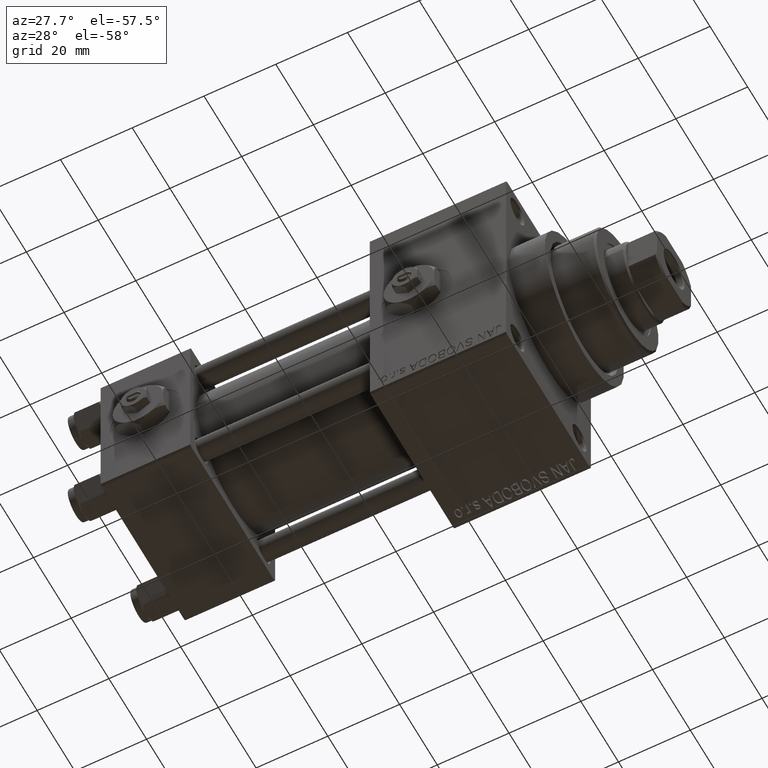
[diagram: clean part render]
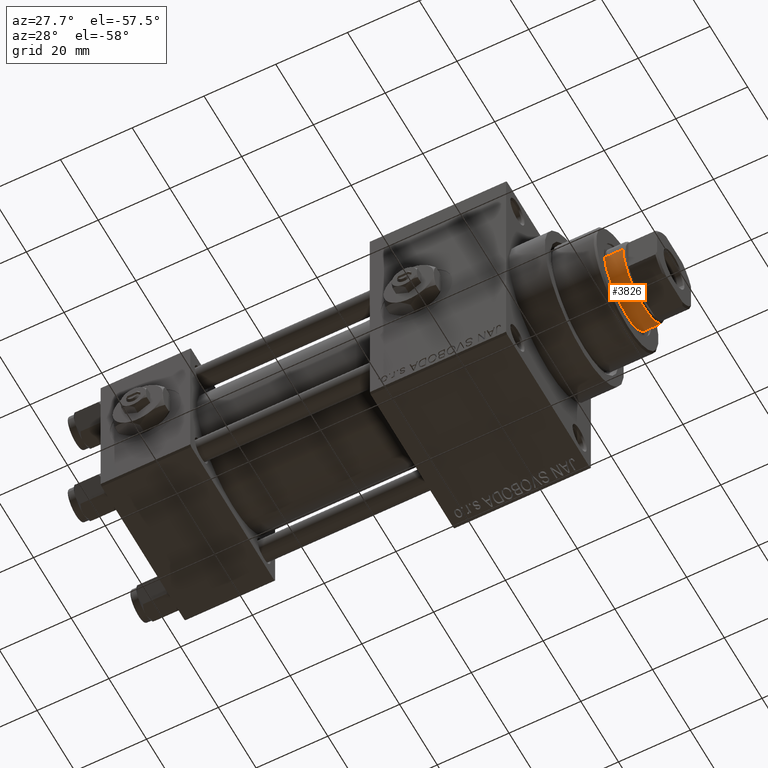
[diagram: same view with one face highlighted and labeled with its STEP entity id]
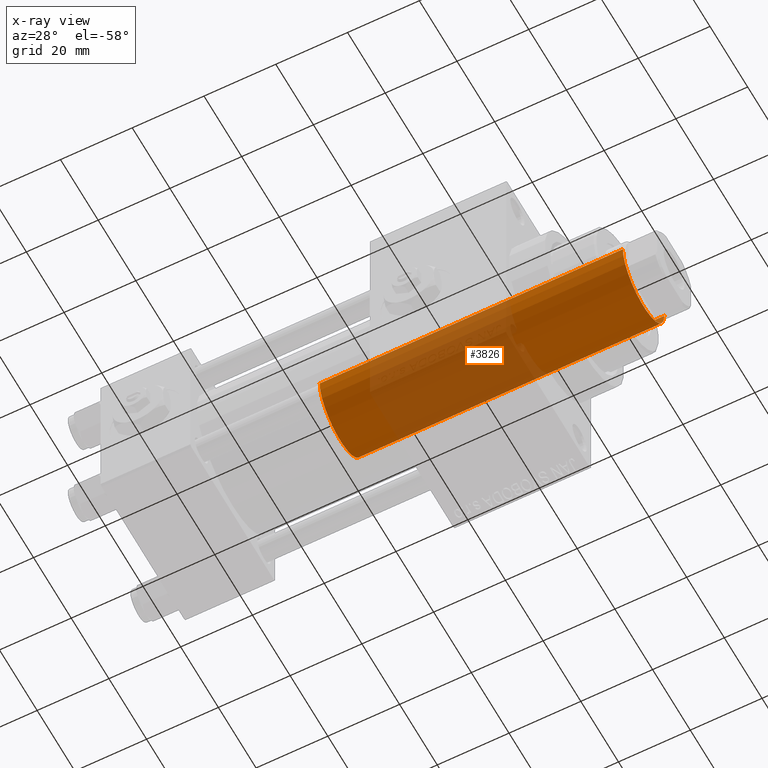
[diagram: x-ray of the same camera — body ghosted, the highlighted face saturated]
A machine part, auxiliary view. The second image highlights one B-rep face of the part: STEP entity #3826.
The next image is the same camera in x-ray: the body ghosted, the highlighted face saturated — about 47% of this face is hidden behind the body in this view.
In plain terms, the highlighted cylindrical surface (partial cylindrical patch) has radius 11 mm, axis along (-1, 0, 0).
Its self-contained STEP definition (entity closure, byte-faithful):
#1471 = DIRECTION ( 'NONE',  ( 1.000000000000000000, 0.000000000000000000, 0.000000000000000000 ) ) ;
#1485 = DIRECTION ( 'NONE',  ( -0.000000000000000000, -0.000000000000000000, -1.000000000000000000 ) ) ;
#3085 = VERTEX_POINT ( 'NONE', #34247 ) ;
#3826 = ADVANCED_FACE ( 'NONE', ( #30108 ), #40547, .T. ) ;
#4333 = ORIENTED_EDGE ( 'NONE', *, *, #35083, .F. ) ;
#4607 = EDGE_CURVE ( 'NONE', #32244, #34525, #16309, .T. ) ;
#5225 = LINE ( 'NONE', #16887, #21027 ) ;
#6756 = DIRECTION ( 'NONE',  ( -0.000000000000000000, -0.000000000000000000, -1.000000000000000000 ) ) ;
#7936 = VECTOR ( 'NONE', #23996, 1000.000000000000000 ) ;
#9404 = CARTESIAN_POINT ( 'NONE',  ( 0.000000000000000000, 0.000000000000000000, 30.00000000000000000 ) ) ;
#12909 = CARTESIAN_POINT ( 'NONE',  ( 11.00000000000000000, 1.347111479062088405E-15, 30.00000000000000000 ) ) ;
#13381 = DIRECTION ( 'NONE',  ( 0.000000000000000000, 0.000000000000000000, 1.000000000000000000 ) ) ;
#14513 = ORIENTED_EDGE ( 'NONE', *, *, #4607, .T. ) ;
#16164 = EDGE_LOOP ( 'NONE', ( #31415, #14513, #38165, #4333 ) ) ;
#16309 = LINE ( 'NONE', #42650, #7936 ) ;
#16887 = CARTESIAN_POINT ( 'NONE',  ( -11.00000000000000000, 0.000000000000000000, 115.0000000000000000 ) ) ;
#20458 = DIRECTION ( 'NONE',  ( 1.000000000000000000, 0.000000000000000000, 0.000000000000000000 ) ) ;
#21027 = VECTOR ( 'NONE', #1485, 1000.000000000000000 ) ;
#22885 = CARTESIAN_POINT ( 'NONE',  ( 11.00000000000000000, 1.347111479062088405E-15, 114.5000000000000142 ) ) ;
#23698 = CARTESIAN_POINT ( 'NONE',  ( -11.00000000000000000, 0.000000000000000000, 30.00000000000000000 ) ) ;
#23996 = DIRECTION ( 'NONE',  ( -0.000000000000000000, -0.000000000000000000, -1.000000000000000000 ) ) ;
#26081 = EDGE_CURVE ( 'NONE', #3085, #32244, #35304, .T. ) ;
#26121 = CARTESIAN_POINT ( 'NONE',  ( 0.000000000000000000, 0.000000000000000000, 115.0000000000000000 ) ) ;
#27925 = DIRECTION ( 'NONE',  ( 0.000000000000000000, 0.000000000000000000, -1.000000000000000000 ) ) ;
#30108 = FACE_OUTER_BOUND ( 'NONE', #16164, .T. ) ;
#31142 = CARTESIAN_POINT ( 'NONE',  ( 0.000000000000000000, 0.000000000000000000, 114.5000000000000142 ) ) ;
#31415 = ORIENTED_EDGE ( 'NONE', *, *, #26081, .T. ) ;
#32244 = VERTEX_POINT ( 'NONE', #22885 ) ;
#33725 = AXIS2_PLACEMENT_3D ( 'NONE', #31142, #27925, #20458 ) ;
#33960 = CIRCLE ( 'NONE', #49042, 11.00000000000000000 ) ;
#34247 = CARTESIAN_POINT ( 'NONE',  ( -11.00000000000000000, 0.000000000000000000, 114.5000000000000142 ) ) ;
#34525 = VERTEX_POINT ( 'NONE', #12909 ) ;
#35083 = EDGE_CURVE ( 'NONE', #3085, #43543, #5225, .T. ) ;
#35304 = CIRCLE ( 'NONE', #33725, 11.00000000000000000 ) ;
#38165 = ORIENTED_EDGE ( 'NONE', *, *, #42355, .T. ) ;
#40547 = CYLINDRICAL_SURFACE ( 'NONE', #42716, 11.00000000000000000 ) ;
#42355 = EDGE_CURVE ( 'NONE', #34525, #43543, #33960, .T. ) ;
#42650 = CARTESIAN_POINT ( 'NONE',  ( 11.00000000000000000, 1.347111479062088405E-15, 115.0000000000000000 ) ) ;
#42716 = AXIS2_PLACEMENT_3D ( 'NONE', #26121, #6756, #45255 ) ;
#43543 = VERTEX_POINT ( 'NONE', #23698 ) ;
#45255 = DIRECTION ( 'NONE',  ( -1.000000000000000000, 0.000000000000000000, 0.000000000000000000 ) ) ;
#49042 = AXIS2_PLACEMENT_3D ( 'NONE', #9404, #13381, #1471 ) ;